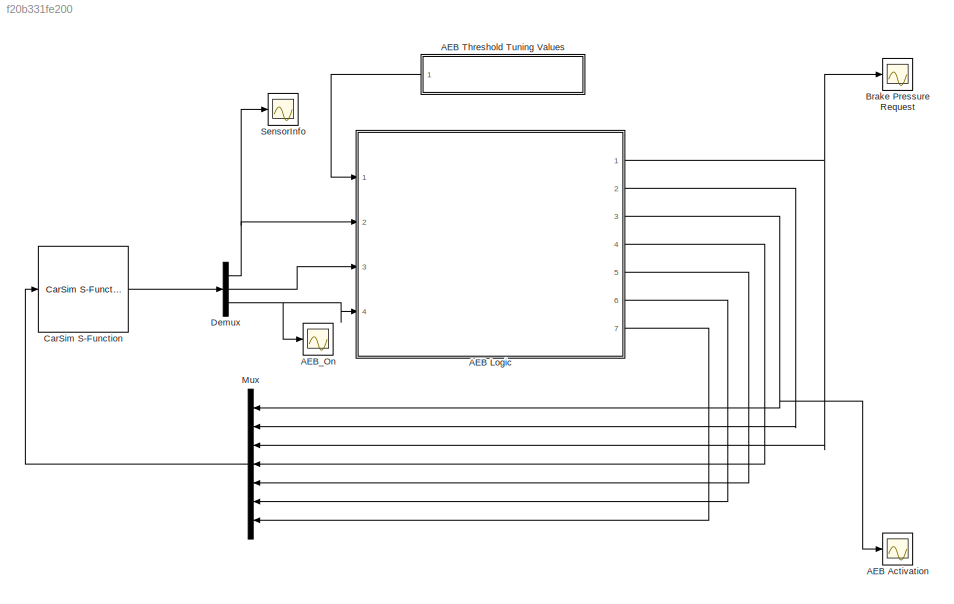
MODEL slx_f20b331fe200
KIND model
BLOCK [Scope] AEB Activation
  DataFormat = StructureWithTime
  Floating = off
  LimitDataPoints = off
  NumInputPorts = 1
  Ports = [1]
  SaveName = ScopeData6
  ShowLegends = off
  YMax = 1.10847
  YMin = -0.06941
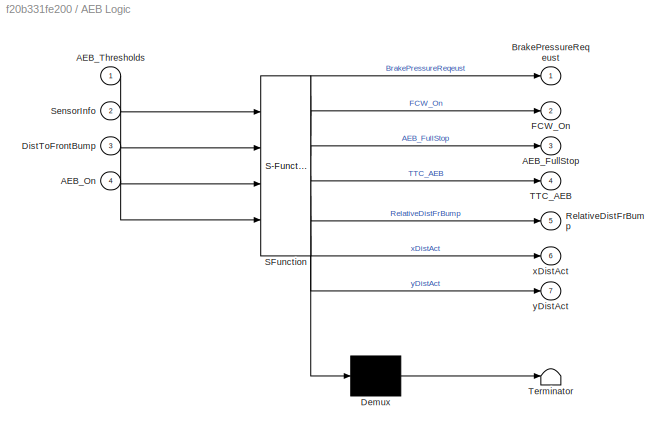
BLOCK [SubSystem] AEB Logic
  ErrorFcn = Stateflow.Translate.translate
  PermitHierarchicalResolution = ExplicitOnly
  Ports = [4, 7]
  RequestExecContextInheritance = off
  SFBlockType = MATLAB Function
  TreatAsAtomicUnit = on
BLOCK [Demux] AEB Logic/ Demux 
  Outputs = 1
  Ports = [1, 1]
BLOCK [S-Function] AEB Logic/ SFunction 
  EnableBusSupport = on
  FunctionName = sf_sfun
  PortCounts = [4 8]
  Ports = [4, 8]
  Tag = Stateflow S-Function EuroNCAP_PedAEB 2
BLOCK [Terminator] AEB Logic/ Terminator 
BLOCK [Outport] AEB Logic/AEB_FullStop
  IconDisplay = Port number
  Port = 3
BLOCK [Inport] AEB Logic/AEB_On
  IconDisplay = Port number
  Port = 4
BLOCK [Inport] AEB Logic/AEB_Thresholds
  IconDisplay = Port number
BLOCK [Outport] AEB Logic/BrakePressureReqeust
  IconDisplay = Port number
BLOCK [Inport] AEB Logic/DistToFrontBump
  IconDisplay = Port number
  Port = 3
BLOCK [Outport] AEB Logic/FCW_On
  IconDisplay = Port number
  Port = 2
BLOCK [Outport] AEB Logic/RelativeDistFrBump
  IconDisplay = Port number
  Port = 5
BLOCK [Inport] AEB Logic/SensorInfo
  IconDisplay = Port number
  Port = 2
BLOCK [Outport] AEB Logic/TTC_AEB
  IconDisplay = Port number
  Port = 4
BLOCK [Outport] AEB Logic/xDistAct
  IconDisplay = Port number
  Port = 6
BLOCK [Outport] AEB Logic/yDistAct
  IconDisplay = Port number
  Port = 7
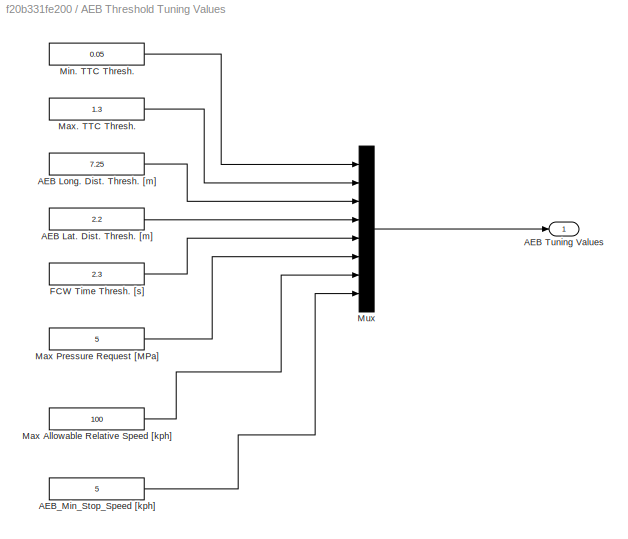
BLOCK [SubSystem] AEB Threshold Tuning Values
  Ports = [0, 1]
  RequestExecContextInheritance = off
BLOCK [Constant] AEB Threshold Tuning Values/AEB Lat. Dist. Thresh. [m]
  Value = 2.2
BLOCK [Constant] AEB Threshold Tuning Values/AEB Long. Dist. Thresh. [m]
  Value = 7.25
BLOCK [Outport] AEB Threshold Tuning Values/AEB Tuning Values
  IconDisplay = Port number
BLOCK [Constant] AEB Threshold Tuning Values/AEB_Min_Stop_Speed [kph]
  Value = 5
BLOCK [Constant] AEB Threshold Tuning Values/FCW Time Thresh. [s]
  Value = 2.3
BLOCK [Constant] AEB Threshold Tuning Values/Max Allowable Relative Speed [kph]
  Value = 100
BLOCK [Constant] AEB Threshold Tuning Values/Max Pressure Request [MPa]
  Value = 5
BLOCK [Constant] AEB Threshold Tuning Values/Max. TTC Thresh.
  Value = 1.3
BLOCK [Constant] AEB Threshold Tuning Values/Min. TTC Thresh.
  Value = 0.05
BLOCK [Mux] AEB Threshold Tuning Values/Mux
  DisplayOption = bar
  Inputs = 8
  Ports = [8, 1]
BLOCK [Scope] AEB_On
  DataFormat = StructureWithTime
  Floating = off
  LimitDataPoints = off
  NumInputPorts = 1
  Ports = [1]
  ShowLegends = off
  YMax = 1.125
  YMin = -0.125
BLOCK [Scope] Brake Pressure Request
  DataFormat = StructureWithTime
  Floating = off
  LimitDataPoints = off
  NumInputPorts = 1
  Ports = [1]
  SaveName = ScopeData5
  ShowLegends = off
  YMax = 5.625
  YMin = -0.625
BLOCK [Reference] CarSim S-Function  REF=Solver_SF/CarSim S-Function
  Ports = [1, 1]
  Priority = 1
  Run_RTs = off
  SIMFILE = simfile.sim
  SourceBlock = Solver_SF/CarSim S-Function
  SourceType = Vehicle math model library
  StopMode_ind = Vehicle Model
  vs_state_ind = Run
BLOCK [Demux] Demux
  DisplayOption = bar
  Outputs = [6 1 1]
  Ports = [1, 3]
BLOCK [Mux] Mux
  DisplayOption = bar
  Inputs = 7
  Ports = [7, 1]
BLOCK [Scope] SensorInfo
  DataFormat = StructureWithTime
  Floating = off
  LimitDataPoints = off
  NumInputPorts = 1
  Ports = [1]
  SaveName = ScopeData1
  ShowLegends = on
  YMax = 56
  YMin = -23.16129
NET AEB Logic:1 -> Brake Pressure Request:1, Mux:3
LINE AEB Logic:2 -> Mux:2
NET AEB Logic:3 -> AEB Activation:1, Mux:1
LINE AEB Logic:4 -> Mux:4
LINE AEB Logic:5 -> Mux:5
LINE AEB Logic:6 -> Mux:6
LINE AEB Logic:7 -> Mux:7
LINE AEB Threshold Tuning Values/AEB Lat. Dist. Thresh. [m]:1 -> AEB Threshold Tuning Values/Mux:4
LINE AEB Threshold Tuning Values/AEB Long. Dist. Thresh. [m]:1 -> AEB Threshold Tuning Values/Mux:3
LINE AEB Threshold Tuning Values/AEB_Min_Stop_Speed [kph]:1 -> AEB Threshold Tuning Values/Mux:8
LINE AEB Threshold Tuning Values/FCW Time Thresh. [s]:1 -> AEB Threshold Tuning Values/Mux:5
LINE AEB Threshold Tuning Values/Max Allowable Relative Speed [kph]:1 -> AEB Threshold Tuning Values/Mux:7
LINE AEB Threshold Tuning Values/Max Pressure Request [MPa]:1 -> AEB Threshold Tuning Values/Mux:6
LINE AEB Threshold Tuning Values/Max. TTC Thresh.:1 -> AEB Threshold Tuning Values/Mux:2
LINE AEB Threshold Tuning Values/Min. TTC Thresh.:1 -> AEB Threshold Tuning Values/Mux:1
LINE AEB Threshold Tuning Values/Mux:1 -> AEB Threshold Tuning Values/AEB Tuning Values:1
LINE AEB Threshold Tuning Values:1 -> AEB Logic:1
LINE CarSim S-Function:1 -> Demux:1
NET Demux:1 -> AEB Logic:2, SensorInfo:1
LINE Demux:2 -> AEB Logic:3
NET Demux:3 -> AEB Logic:4, AEB_On:1
LINE Mux:1 -> CarSim S-Function:1
note: NET lines group one-source signal fan-out (src -> all destinations, sorted); 1:1 wires keep LINE
CHART AEB Logic states=1 transitions=1
  STATE_LABEL 'eML_blk_kernel()'
  STATE_LABEL 'SCRIPT:\nfunction [BrakePressureReqeust, FCW_On, AEB_FullStop,...\n    TTC_AEB, RelativeDistFrBump, xDistAct, ...\n    yDistAct] = AEB_SystemOutputs(AEB_Thresholds,...\n    SensorInfo, DistToFrontBump, AEB_On)\n\nTTC_minTimeThresh = AEB_Thresholds(1); %both time and distance minimum \n% threshold value\nTTC_maxTimeThresh = AEB_Thresholds(2);\nAEB_longDistThresh = AEB_Thresholds(3);\nAEB_latDistThresh = AEB_...<+3608ch>'
